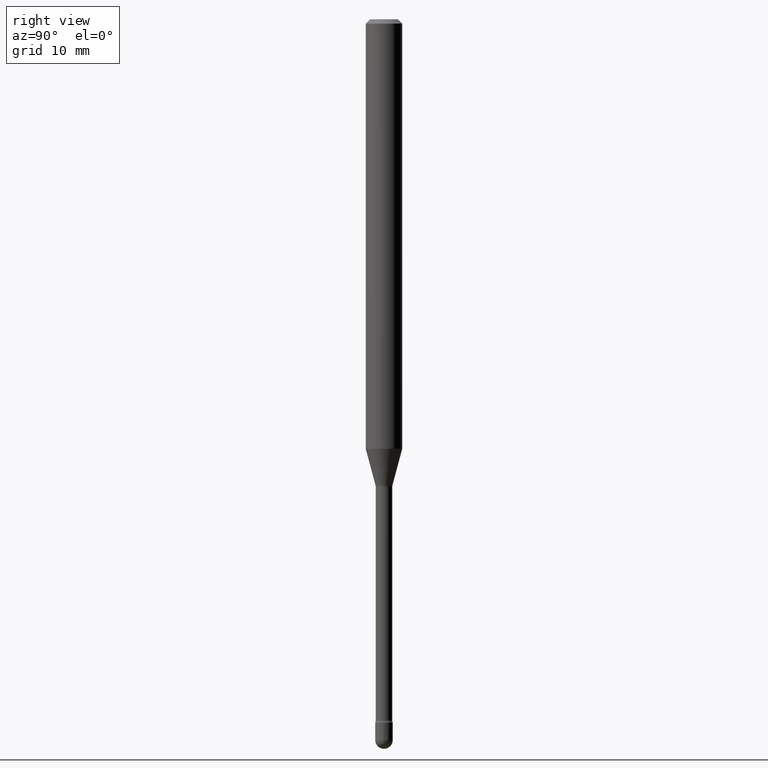
[diagram: clean part render]
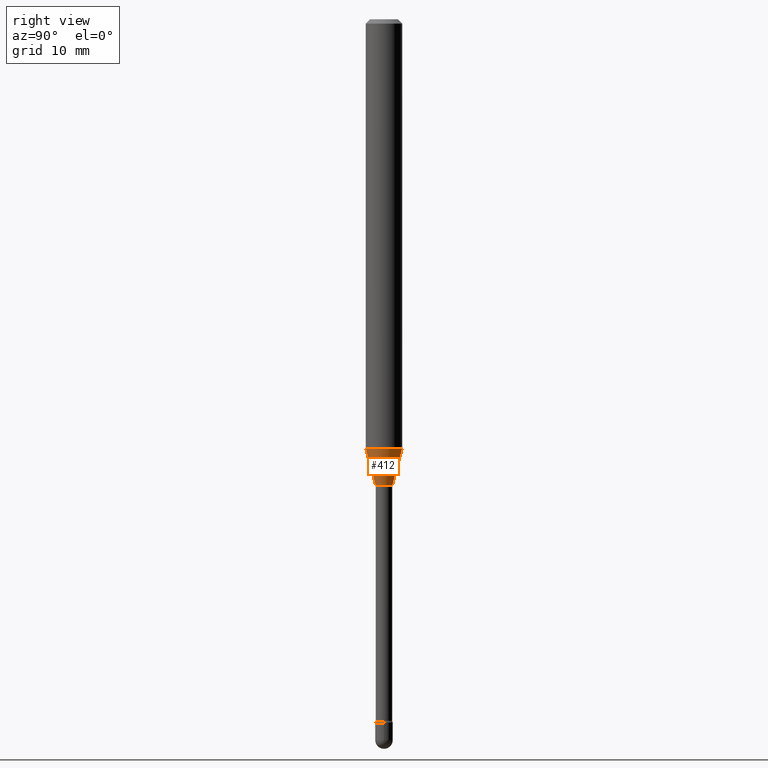
[diagram: same view with one face highlighted and labeled with its STEP entity id]
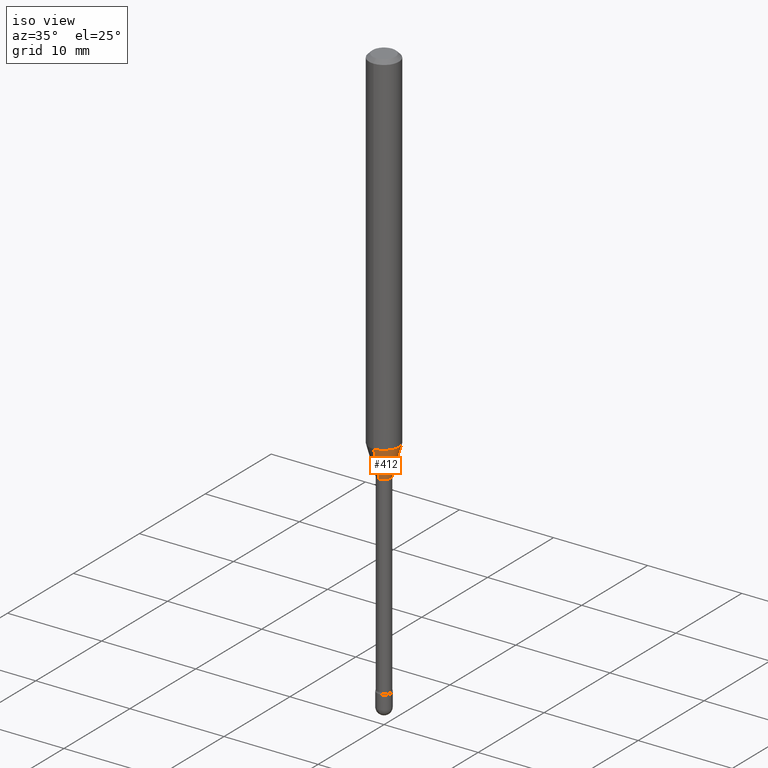
[diagram: same view with one face highlighted and labeled with its STEP entity id]
A machine part, right view. The second image highlights one B-rep face of the part: STEP entity #412.
A second angle (iso view) of the same face is appended — the face is thin or edge-on in the first view.
In plain terms, the highlighted conical surface has half-angle 15 deg.
Its self-contained STEP definition (entity closure, byte-faithful):
#19 = VERTEX_POINT ( 'NONE', #330 ) ;
#27 = VERTEX_POINT ( 'NONE', #286 ) ;
#50 = EDGE_CURVE ( 'NONE', #151, #27, #468, .T. ) ;
#56 = CARTESIAN_POINT ( 'NONE',  ( -4.364351673553558748E-16, -0.06250000000000517641, -1.471990657300387584 ) ) ;
#76 = EDGE_CURVE ( 'NONE', #451, #151, #335, .T. ) ;
#83 = ORIENTED_EDGE ( 'NONE', *, *, #229, .T. ) ;
#87 = CIRCLE ( 'NONE', #414, 0.02871111260566398468 ) ;
#93 = DIRECTION ( 'NONE',  ( -1.807323732225328562E-15, -0.2588190451025179639, 0.9659258262890690894 ) ) ;
#111 = CARTESIAN_POINT ( 'NONE',  ( 3.908148522873946629E-29, -5.579619698512475548E-15, -1.598092501787273134 ) ) ;
#115 = DIRECTION ( 'NONE',  ( 1.839019923739598738E-15, 0.2588190451025247363, 0.9659258262890673130 ) ) ;
#134 = DIRECTION ( 'NONE',  ( -6.982962677686265133E-15, -1.000000000000000000, 0.000000000000000000 ) ) ;
#136 = ORIENTED_EDGE ( 'NONE', *, *, #76, .F. ) ;
#140 = ORIENTED_EDGE ( 'NONE', *, *, #50, .F. ) ;
#146 = CARTESIAN_POINT ( 'NONE',  ( -2.004886277601601689E-16, -0.02871111260566956355, -1.598092501787273134 ) ) ;
#151 = VERTEX_POINT ( 'NONE', #56 ) ;
#173 = LINE ( 'NONE', #176, #483 ) ;
#176 = CARTESIAN_POINT ( 'NONE',  ( 2.040047249754869106E-16, 0.02871111260565840581, -1.598092501787273134 ) ) ;
#229 = EDGE_CURVE ( 'NONE', #19, #27, #173, .T. ) ;
#253 = DIRECTION ( 'NONE',  ( -6.982962677686265133E-15, -1.000000000000000000, 0.000000000000000000 ) ) ;
#256 = CARTESIAN_POINT ( 'NONE',  ( 3.908148522873946629E-29, -5.579619698512475548E-15, -1.598092501787273134 ) ) ;
#281 = VECTOR ( 'NONE', #93, 39.37007874015748854 ) ;
#286 = CARTESIAN_POINT ( 'NONE',  ( 4.440892098500983121E-16, 0.06249999999999484440, -1.471990657300388250 ) ) ;
#297 = CARTESIAN_POINT ( 'NONE',  ( 3.599765411938919175E-29, -5.139344598835272478E-15, -1.471990657300388028 ) ) ;
#299 = DIRECTION ( 'NONE',  ( -2.445508328524885105E-29, 3.491424740603154151E-15, 1.000000000000000000 ) ) ;
#306 = ORIENTED_EDGE ( 'NONE', *, *, #419, .T. ) ;
#321 = CONICAL_SURFACE ( 'NONE', #506, 0.02871111260566398468, 0.2617993877991500740 ) ;
#330 = CARTESIAN_POINT ( 'NONE',  ( 3.240469674127928209E-16, 0.02871111260565840581, -1.598092501787273134 ) ) ;
#335 = LINE ( 'NONE', #491, #281 ) ;
#379 = DIRECTION ( 'NONE',  ( -2.445508328524885105E-29, 3.491424740603154151E-15, 1.000000000000000000 ) ) ;
#393 = EDGE_LOOP ( 'NONE', ( #306, #83, #140, #136 ) ) ;
#412 = ADVANCED_FACE ( 'NONE', ( #554 ), #321, .T. ) ;
#414 = AXIS2_PLACEMENT_3D ( 'NONE', #256, #379, #134 ) ;
#415 = DIRECTION ( 'NONE',  ( -2.445508328524885105E-29, 3.491424740603154151E-15, 1.000000000000000000 ) ) ;
#417 = DIRECTION ( 'NONE',  ( -6.982962677686265922E-15, -1.000000000000000000, 4.370956789862821150E-15 ) ) ;
#419 = EDGE_CURVE ( 'NONE', #451, #19, #87, .T. ) ;
#451 = VERTEX_POINT ( 'NONE', #146 ) ;
#468 = CIRCLE ( 'NONE', #518, 0.06250000000000000000 ) ;
#483 = VECTOR ( 'NONE', #115, 39.37007874015748854 ) ;
#491 = CARTESIAN_POINT ( 'NONE',  ( -2.004886277601601689E-16, -0.02871111260566956355, -1.598092501787273134 ) ) ;
#506 = AXIS2_PLACEMENT_3D ( 'NONE', #111, #299, #253 ) ;
#518 = AXIS2_PLACEMENT_3D ( 'NONE', #297, #415, #417 ) ;
#554 = FACE_OUTER_BOUND ( 'NONE', #393, .T. ) ;